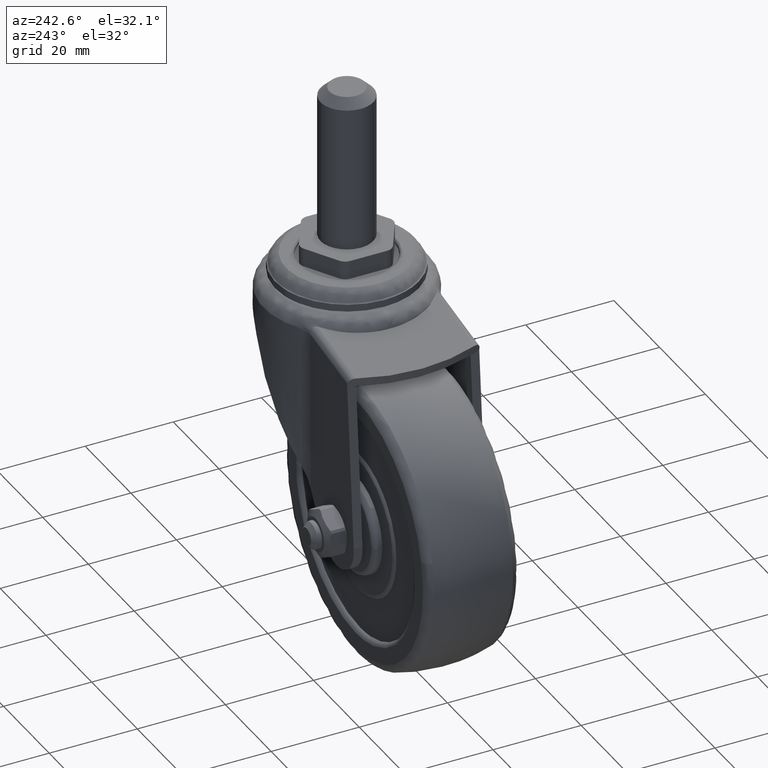
[diagram: clean part render]
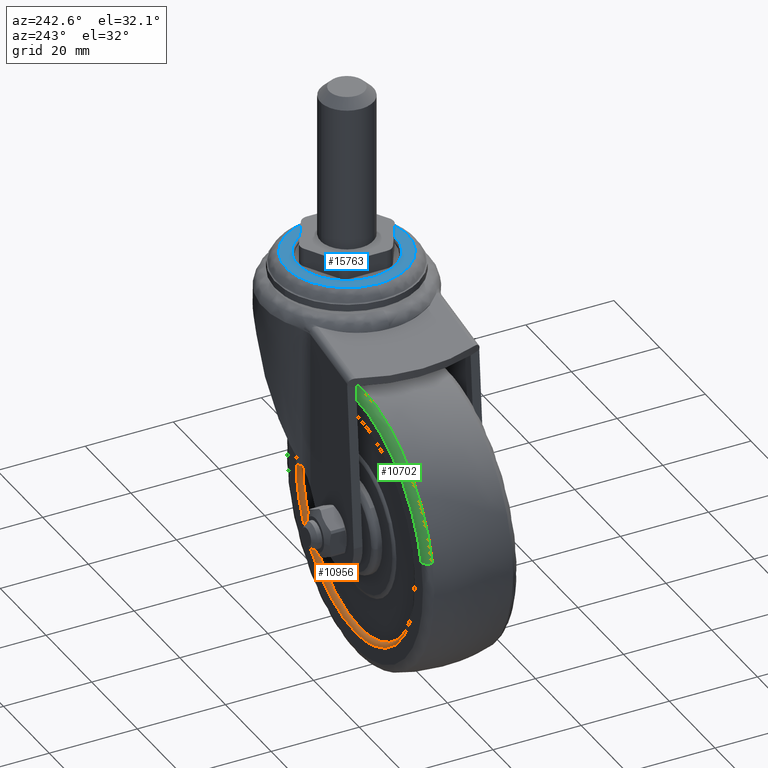
[diagram: same view with three faces highlighted in distinct colors, each labeled with its STEP entity id]
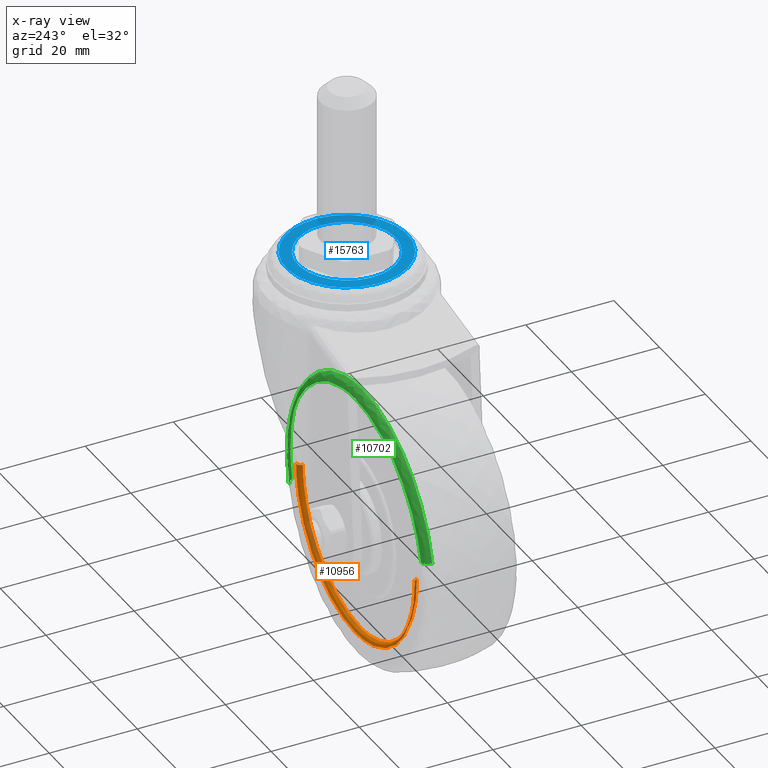
[diagram: x-ray of the same camera — body ghosted, the three highlighted faces saturated]
A machine part, auxiliary view with three faces highlighted in distinct colors.
The next image is the same camera in x-ray (body ghosted, the three faces saturated) — at least one of them is partly hidden behind the body in this view.
Their STEP definitions:

[orange] entity #10956 — the highlighted face is a freeform B-spline surface patch.
#10802=CARTESIAN_POINT('',(0.0,10.500000000000000,-26.0));
#10803=VERTEX_POINT('',#10802);
#10804=CARTESIAN_POINT('',(25.997946908454740,10.499999999999940,-0.326717035244491));
#10805=VERTEX_POINT('',#10804);
#10806=CARTESIAN_POINT('',(0.0,10.500000000000000,-26.0));
#10807=CARTESIAN_POINT('',(25.675310055888392,10.499999999999972,-25.999999998486761));
#10808=CARTESIAN_POINT('',(25.997946908454736,10.499999999999940,-0.326717035244491));
#10816=(BOUNDED_CURVE()B_SPLINE_CURVE(2,(#10806,#10807,#10808),.UNSPECIFIED.,.F.,.U.)B_SPLINE_CURVE_WITH_KNOTS((3,3),(0.0,0.247784295912908),.UNSPECIFIED.)CURVE()GEOMETRIC_REPRESENTATION_ITEM()RATIONAL_B_SPLINE_CURVE((1.0,0.709702639994573,0.994854295623712))REPRESENTATION_ITEM(''));
#10817=EDGE_CURVE('',#10803,#10805,#10816,.T.);
#10836=CARTESIAN_POINT('',(-25.997946908454740,10.499999999999940,0.326717035244494));
#10837=VERTEX_POINT('',#10836);
#10851=CARTESIAN_POINT('',(-25.997946908454736,10.499999999999940,0.326717035244494));
#10852=CARTESIAN_POINT('',(-25.999999759919049,10.499999999999938,0.163364965424017));
#10853=CARTESIAN_POINT('',(-25.999999760675649,10.499999999999940,-3.007596E-009));
#10854=CARTESIAN_POINT('',(-25.999999881089696,10.499999999999972,-26.000000001494353));
#10855=CARTESIAN_POINT('',(0.0,10.500000000000000,-26.0));
#10863=(BOUNDED_CURVE()B_SPLINE_CURVE(2,(#10851,#10852,#10853,#10854,#10855),.UNSPECIFIED.,.F.,.U.)B_SPLINE_CURVE_WITH_KNOTS((3,2,3),(0.747784295912908,0.750000000000000,1.0),.UNSPECIFIED.)CURVE()GEOMETRIC_REPRESENTATION_ITEM()RATIONAL_B_SPLINE_CURVE((0.994854295623712,0.997404141191974,1.0,0.707106781186547,1.0))REPRESENTATION_ITEM(''));
#10864=EDGE_CURVE('',#10837,#10803,#10863,.T.);
#10869=CARTESIAN_POINT('',(-25.000446548479886,9.430462890886753,0.314181414873587));
#10870=CARTESIAN_POINT('',(-25.314627963353484,9.430462890886755,-24.686265133606302));
#10871=CARTESIAN_POINT('',(-0.314181414873587,9.430462890886753,-25.000446548479886));
#10872=CARTESIAN_POINT('',(24.686265133606302,9.430462890886755,-25.314627963353484));
#10873=CARTESIAN_POINT('',(25.000446548479886,9.430462890886753,-0.314181414873587));
#10874=CARTESIAN_POINT('',(-24.920495083465923,10.577537174017754,0.313176662244445));
#10875=CARTESIAN_POINT('',(-25.233671745710346,10.577537174017753,-24.607318421221471));
#10876=CARTESIAN_POINT('',(-0.313176662244445,10.577537174017754,-24.920495083465923));
#10877=CARTESIAN_POINT('',(24.607318421221471,10.577537174017753,-25.233671745710371));
#10878=CARTESIAN_POINT('',(24.920495083465923,10.577537174017754,-0.313176662244445));
#10879=CARTESIAN_POINT('',(-26.067478796179365,10.497579363531763,0.327590843407108));
#10880=CARTESIAN_POINT('',(-26.395069639586474,10.497579363531763,-25.739887952772253));
#10881=CARTESIAN_POINT('',(-0.327590843407108,10.497579363531763,-26.067478796179365));
#10882=CARTESIAN_POINT('',(25.739887952772253,10.497579363531763,-26.395069639586474));
#10883=CARTESIAN_POINT('',(26.067478796179365,10.497579363531763,-0.327590843407108));
#10891=(BOUNDED_SURFACE()B_SPLINE_SURFACE(2,2,((#10869,#10874,#10879),(#10870,#10875,#10880),(#10871,#10876,#10881),(#10872,#10877,#10882),(#10873,#10878,#10883)),.UNSPECIFIED.,.F.,.F.,.U.)B_SPLINE_SURFACE_WITH_KNOTS((3,2,3),(3,3),(0.0,43.193423388135820,86.386846776271639),(0.0,1.822373945662545),.UNSPECIFIED.)GEOMETRIC_REPRESENTATION_ITEM()RATIONAL_B_SPLINE_SURFACE(((0.910479795090997,0.597479572841838,0.910479806786608),(0.643806437242182,0.422481857576905,0.643806445512228),(0.910479795090997,0.597479572841838,0.910479806786608),(0.643806437242182,0.422481857576905,0.643806445512228),(0.910479795090997,0.597479572841838,0.910479806786608)))REPRESENTATION_ITEM('')SURFACE());
#10892=ORIENTED_EDGE('',*,*,#10864,.F.);
#10893=CARTESIAN_POINT('',(-24.998026105094521,9.500000000580172,0.314150997154062));
#10894=VERTEX_POINT('',#10893);
#10895=CARTESIAN_POINT('',(-24.998026105094524,9.500000000580172,0.314150997154063));
#10896=CARTESIAN_POINT('',(-24.998026105666881,10.499999759152912,0.314150997778139));
#10897=CARTESIAN_POINT('',(-25.997946908454740,10.499999999999941,0.326717035244494));
#10905=(BOUNDED_CURVE()B_SPLINE_CURVE(2,(#10895,#10896,#10897),.UNSPECIFIED.,.F.,.U.)B_SPLINE_CURVE_WITH_KNOTS((3,3),(-1.725134642686851,-0.274865603705734),.UNSPECIFIED.)CURVE()GEOMETRIC_REPRESENTATION_ITEM()RATIONAL_B_SPLINE_CURVE((0.883342149440779,0.624617268295769,0.883342061528978))REPRESENTATION_ITEM(''));
#10906=EDGE_CURVE('',#10894,#10837,#10905,.T.);
#10907=ORIENTED_EDGE('',*,*,#10906,.F.);
#10908=CARTESIAN_POINT('',(0.0,9.500000000000000,-25.0));
#10909=VERTEX_POINT('',#10908);
#10910=CARTESIAN_POINT('',(-24.998026105094514,9.500000000580172,0.314150997154063));
#10911=CARTESIAN_POINT('',(-25.0,9.500000000578373,0.157081699832371));
#10912=CARTESIAN_POINT('',(-25.0,9.500000000576549,-1.328094E-015));
#10913=CARTESIAN_POINT('',(-25.000000000000004,9.500000000286462,-25.000000000000004));
#10914=CARTESIAN_POINT('',(0.0,9.500000000000000,-25.0));
#10922=(BOUNDED_CURVE()B_SPLINE_CURVE(2,(#10910,#10911,#10912,#10913,#10914),.UNSPECIFIED.,.F.,.U.)B_SPLINE_CURVE_WITH_KNOTS((3,2,3),(0.747784295921234,0.750000000000000,1.0),.UNSPECIFIED.)CURVE()GEOMETRIC_REPRESENTATION_ITEM()RATIONAL_B_SPLINE_CURVE((0.994854295642875,0.997404141201728,1.0,0.707106781186547,1.0))REPRESENTATION_ITEM(''));
#10923=EDGE_CURVE('',#10894,#10909,#10922,.T.);
#10924=ORIENTED_EDGE('',*,*,#10923,.T.);
#10925=CARTESIAN_POINT('',(24.998026105094521,9.500000000580172,-0.314150997154053));
#10926=VERTEX_POINT('',#10925);
#10927=CARTESIAN_POINT('',(0.0,9.500000000000000,-25.0));
#10928=CARTESIAN_POINT('',(24.687798247613475,9.500000000290088,-25.0));
#10929=CARTESIAN_POINT('',(24.998026105094521,9.500000000580172,-0.314150997154053));
#10937=(BOUNDED_CURVE()B_SPLINE_CURVE(2,(#10927,#10928,#10929),.UNSPECIFIED.,.F.,.U.)B_SPLINE_CURVE_WITH_KNOTS((3,3),(0.0,0.247784295921234),.UNSPECIFIED.)CURVE()GEOMETRIC_REPRESENTATION_ITEM()RATIONAL_B_SPLINE_CURVE((1.0,0.709702639984819,0.994854295642875))REPRESENTATION_ITEM(''));
#10938=EDGE_CURVE('',#10909,#10926,#10937,.T.);
#10939=ORIENTED_EDGE('',*,*,#10938,.T.);
#10940=CARTESIAN_POINT('',(24.998026105094524,9.500000000580172,-0.314150997154053));
#10941=CARTESIAN_POINT('',(24.998026105666906,10.499999759152910,-0.314150997778133));
#10942=CARTESIAN_POINT('',(25.997946908454733,10.499999999999941,-0.326717035244491));
#10950=(BOUNDED_CURVE()B_SPLINE_CURVE(2,(#10940,#10941,#10942),.UNSPECIFIED.,.F.,.U.)B_SPLINE_CURVE_WITH_KNOTS((3,3),(-1.725134642686851,-0.274865603705735),.UNSPECIFIED.)CURVE()GEOMETRIC_REPRESENTATION_ITEM()RATIONAL_B_SPLINE_CURVE((0.883342149440779,0.624617268295769,0.883342061528978))REPRESENTATION_ITEM(''));
#10951=EDGE_CURVE('',#10926,#10805,#10950,.T.);
#10952=ORIENTED_EDGE('',*,*,#10951,.T.);
#10953=ORIENTED_EDGE('',*,*,#10817,.F.);
#10954=EDGE_LOOP('',(#10892,#10907,#10924,#10939,#10952,#10953));
#10955=FACE_OUTER_BOUND('',#10954,.T.);
#10956=ADVANCED_FACE('',(#10955),#10891,.T.);

[blue] entity #15763 — the highlighted face is a freeform B-spline surface patch.
#13410=CARTESIAN_POINT('',(35.100000000000001,1.421085E-014,48.299999000000099));
#13411=VERTEX_POINT('',#13410);
#13412=CARTESIAN_POINT('',(35.096494500704118,-0.278944059484951,48.299999000000099));
#13413=VERTEX_POINT('',#13412);
#13414=CARTESIAN_POINT('',(35.100000000000001,1.421085E-014,48.299999000000099));
#13415=CARTESIAN_POINT('',(35.099999999830658,-0.139494056601476,48.299999000000085));
#13416=CARTESIAN_POINT('',(35.096494500704118,-0.278944059484951,48.299999000000099));
#13424=(BOUNDED_CURVE()B_SPLINE_CURVE(2,(#13414,#13415,#13416),.UNSPECIFIED.,.F.,.U.)B_SPLINE_CURVE_WITH_KNOTS((3,3),(0.0,0.004420108231335),.UNSPECIFIED.)CURVE()GEOMETRIC_REPRESENTATION_ITEM()RATIONAL_B_SPLINE_CURVE((1.0,0.994821521090482,0.989826157678995))REPRESENTATION_ITEM(''));
#13425=EDGE_CURVE('',#13411,#13413,#13424,.T.);
#13427=CARTESIAN_POINT('',(12.903505499295880,0.278944059484978,48.299999000000099));
#13428=VERTEX_POINT('',#13427);
#13429=CARTESIAN_POINT('',(12.903505499295880,0.278944059484978,48.299999000000099));
#13430=CARTESIAN_POINT('',(12.925912242191970,1.179531472061810,48.299999000000057));
#13431=CARTESIAN_POINT('',(13.138810624165840,2.615858692309269,48.299999000000007));
#13432=CARTESIAN_POINT('',(13.865089789097270,4.658420631091869,48.299999000000312));
#13433=CARTESIAN_POINT('',(14.729930687516161,6.197023483776738,48.299998999999673));
#13434=CARTESIAN_POINT('',(15.832136783941840,7.569948080305323,48.299999000001037));
#13435=CARTESIAN_POINT('',(16.852359384138460,8.528746837156131,48.299998999999382));
#13436=CARTESIAN_POINT('',(18.052532308749200,9.408670470962589,48.299999000000177));
#13437=CARTESIAN_POINT('',(19.436677172111889,10.173567930686101,48.299999000000369));
#13438=CARTESIAN_POINT('',(20.970714504247479,10.716974639215399,48.299998999999723));
#13439=CARTESIAN_POINT('',(22.606361373118851,11.049352124438441,48.299999000000660));
#13440=CARTESIAN_POINT('',(24.095413857382521,11.139514241166770,48.299998999998841));
#13441=CARTESIAN_POINT('',(25.713990996654029,11.000581685661571,48.299999000000469));
#13442=CARTESIAN_POINT('',(27.300842646557498,10.646588665745099,48.299998999999872));
#13443=CARTESIAN_POINT('',(28.897559810158519,10.012941929661110,48.299999000000518));
#13444=CARTESIAN_POINT('',(30.334206950973279,9.159479256822671,48.299998999999389));
#13445=CARTESIAN_POINT('',(31.566716614549922,8.170823169981404,48.299999000000092));
#13446=CARTESIAN_POINT('',(32.866441737432403,6.789207841093836,48.299999000000163));
#13447=CARTESIAN_POINT('',(33.960759561163513,5.066999011639638,48.299999000000213));
#13448=CARTESIAN_POINT('',(34.864897295962678,2.702330918268415,48.299998999999289));
#13449=CARTESIAN_POINT('',(35.100366871258089,1.036023089119824,48.299999000001542));
#13450=CARTESIAN_POINT('',(35.100000000000001,1.421085E-014,48.299999000000099));
#13451=B_SPLINE_CURVE_WITH_KNOTS('',3,(#13429,#13430,#13431,#13432,#13433,#13434,#13435,#13436,#13437,#13438,#13439,#13440,#13441,#13442,#13443,#13444,#13445,#13446,#13447,#13448,#13449,#13450),.UNSPECIFIED.,.F.,.U.,(4,1,1,1,1,1,1,1,1,1,1,1,1,1,1,1,1,1,1,4),(0.000000099898379,2.702529220478255,4.324112396266127,6.486156774907769,7.972589232491590,9.594142656629792,10.675164787973760,12.431857235962219,14.323639565401290,15.539834265676779,17.431577190719739,18.782822439962370,20.404410596058131,22.296176321133490,23.917743245791051,25.404175631123920,27.025729109484690,29.593164688431461,31.484983653009468,34.592918622744847),.UNSPECIFIED.);
#13452=EDGE_CURVE('',#13428,#13411,#13451,.T.);
#13509=CARTESIAN_POINT('',(12.900000000000000,1.421085E-014,48.299999000000099));
#13510=VERTEX_POINT('',#13509);
#13511=CARTESIAN_POINT('',(35.096494500704118,-0.278944059484951,48.299999000000099));
#13512=CARTESIAN_POINT('',(35.071921228990632,-1.269619942581748,48.299999000000078));
#13513=CARTESIAN_POINT('',(34.855548422381098,-2.615698409823947,48.299999000000120));
#13514=CARTESIAN_POINT('',(34.220830848433479,-4.400232607390553,48.299999000000113));
#13515=CARTESIAN_POINT('',(33.474054441600643,-5.895122512961702,48.299999000000113));
#13516=CARTESIAN_POINT('',(32.365373247896997,-7.384402335800156,48.299999000000028));
#13517=CARTESIAN_POINT('',(30.785701142025619,-8.869097718273354,48.299999000000177));
#13518=CARTESIAN_POINT('',(29.063085754025160,-9.962737963066017,48.299999000000383));
#13519=CARTESIAN_POINT('',(26.866999832204620,-10.801460015067651,48.299998999999623));
#13520=CARTESIAN_POINT('',(24.853905485734611,-11.134560155837139,48.299999000001158));
#13521=CARTESIAN_POINT('',(23.093100813138442,-11.090762049549239,48.299998999999993));
#13522=CARTESIAN_POINT('',(21.665510822694880,-10.880180625985700,48.299999000000120));
#13523=CARTESIAN_POINT('',(20.184871161531639,-10.473286052160301,48.299999000000113));
#13524=CARTESIAN_POINT('',(18.332671644843192,-9.631903685688290,48.299999000000177));
#13525=CARTESIAN_POINT('',(16.680705503294249,-8.434142765483243,48.299998999999723));
#13526=CARTESIAN_POINT('',(15.443132650283680,-7.118072128804921,48.299999000000277));
#13527=CARTESIAN_POINT('',(14.516808870752341,-5.839490720343710,48.299998999999922));
#13528=CARTESIAN_POINT('',(13.818775299253980,-4.521078250745616,48.299999000000341));
#13529=CARTESIAN_POINT('',(13.109683303091071,-2.522174576146547,48.299998999999808));
#13530=CARTESIAN_POINT('',(12.899553949487490,-1.036033655855108,48.299999000001343));
#13531=CARTESIAN_POINT('',(12.900000000000000,1.421085E-014,48.299999000000099));
#13532=B_SPLINE_CURVE_WITH_KNOTS('',3,(#13511,#13512,#13513,#13514,#13515,#13516,#13517,#13518,#13519,#13520,#13521,#13522,#13523,#13524,#13525,#13526,#13527,#13528,#13529,#13530,#13531),.UNSPECIFIED.,.F.,.U.,(4,1,1,1,1,1,1,1,1,1,1,1,1,1,1,1,1,1,4),(0.000000099896234,2.972827548896998,4.053826658344089,5.675393192342234,7.972589232491590,9.594142656630115,12.161578235502450,14.053399842677910,16.620849446106568,18.242340543114459,19.323318128601802,20.944876718781678,22.836715860755550,25.404175631125650,27.025729109486360,28.241888932124422,30.133718108582340,31.484983653010062,34.592918622745209),.UNSPECIFIED.);
#13533=EDGE_CURVE('',#13413,#13510,#13532,.T.);
#13540=CARTESIAN_POINT('',(12.900000000000000,1.421085E-014,48.299999000000099));
#13541=CARTESIAN_POINT('',(12.900000000169346,0.139494056601504,48.299999000000085));
#13542=CARTESIAN_POINT('',(12.903505499295884,0.278944059484978,48.299999000000099));
#13550=(BOUNDED_CURVE()B_SPLINE_CURVE(2,(#13540,#13541,#13542),.UNSPECIFIED.,.F.,.U.)B_SPLINE_CURVE_WITH_KNOTS((3,3),(0.500000000000000,0.504420108231335),.UNSPECIFIED.)CURVE()GEOMETRIC_REPRESENTATION_ITEM()RATIONAL_B_SPLINE_CURVE((1.0,0.994821521090482,0.989826157678995))REPRESENTATION_ITEM(''));
#13551=EDGE_CURVE('',#13510,#13428,#13550,.T.);
#15515=CARTESIAN_POINT('',(8.821382217823674,-15.177419894947271,48.299999000000099));
#15516=CARTESIAN_POINT('',(39.178618488682901,-15.177419894947271,48.299999000000099));
#15517=CARTESIAN_POINT('',(8.821382217823674,15.177420635071529,48.299999000000099));
#15518=CARTESIAN_POINT('',(39.178618488682901,15.177420635071529,48.299999000000099));
#15519=B_SPLINE_SURFACE_WITH_KNOTS('',1,1,((#15515,#15517),(#15516,#15518)),.UNSPECIFIED.,.F.,.F.,.U.,(2,2),(2,2),(0.0,30.357236270859229),(0.0,30.354840530018802),.UNSPECIFIED.);
#15520=CARTESIAN_POINT('',(37.795639830858420,-0.346795267570719,48.299999048903473));
#15521=VERTEX_POINT('',#15520);
#15522=CARTESIAN_POINT('',(10.200001966216989,0.0,48.299999098654702));
#15523=VERTEX_POINT('',#15522);
#15524=CARTESIAN_POINT('',(37.795639830858420,-0.346795267570719,48.299999048903473));
#15525=CARTESIAN_POINT('',(37.780169533770547,-0.962566302306216,48.299999048917343));
#15526=CARTESIAN_POINT('',(37.640880944143447,-2.471516085062181,48.299999049134342));
#15527=CARTESIAN_POINT('',(37.127192289590660,-4.430798917720012,48.299999050015913));
#15528=CARTESIAN_POINT('',(36.324872789466014,-6.283560543082318,48.299999051420080));
#15529=CARTESIAN_POINT('',(35.388064734594330,-7.881287969801415,48.299999053072717));
#15530=CARTESIAN_POINT('',(33.981493496553163,-9.633597442138576,48.299999055568357));
#15531=CARTESIAN_POINT('',(32.243904568280293,-11.150965831077800,48.299999058666252));
#15532=CARTESIAN_POINT('',(30.374037154979451,-12.290654144931260,48.299999062010919));
#15533=CARTESIAN_POINT('',(29.137299657218701,-12.824413099937299,48.299999064228210));
#15534=CARTESIAN_POINT('',(28.476088963582690,-13.054247638762471,48.299999065414859));
#15535=CARTESIAN_POINT('',(28.369781706385400,-13.089495858592270,48.299999065605682));
#15536=CARTESIAN_POINT('',(28.263716685723001,-13.125430884254451,48.299999065796072));
#15537=CARTESIAN_POINT('',(28.156804276320852,-13.158762600432251,48.299999065988018));
#15538=CARTESIAN_POINT('',(28.023312978288288,-13.200906333511661,48.299999066227677));
#15539=CARTESIAN_POINT('',(27.889126205351900,-13.240864655885320,48.299999066468672));
#15540=CARTESIAN_POINT('',(27.754651502143009,-13.279844784901700,48.299999066710171));
#15541=CARTESIAN_POINT('',(27.646536773726211,-13.309109680722271,48.299999066904427));
#15542=CARTESIAN_POINT('',(27.565638076610419,-13.331746845762691,48.299999067049733));
#15543=CARTESIAN_POINT('',(27.484227506529368,-13.352465806802210,48.299999067196033));
#15544=CARTESIAN_POINT('',(27.403074401397038,-13.374170547896350,48.299999067341808));
#15545=CARTESIAN_POINT('',(27.321417229238332,-13.393893094662380,48.299999067488557));
#15546=CARTESIAN_POINT('',(27.240006228391941,-13.414605260879879,48.299999067634822));
#15547=CARTESIAN_POINT('',(27.158119201277479,-13.433348797079850,48.299999067781997));
#15548=CARTESIAN_POINT('',(27.103677427584859,-13.446473067696431,48.299999067879867));
#15549=CARTESIAN_POINT('',(26.694279763295011,-13.540108701900291,48.299999068615620));
#15550=CARTESIAN_POINT('',(26.308437065541600,-13.611204295540690,48.299999069309692));
#15551=CARTESIAN_POINT('',(25.892545735436531,-13.669627431315840,48.299999070057943));
#15552=CARTESIAN_POINT('',(25.836995387701720,-13.676769429539171,48.299999070157931));
#15553=CARTESIAN_POINT('',(25.753796907420789,-13.688443040038999,48.299999070307642));
#15554=CARTESIAN_POINT('',(25.670342704043598,-13.698107100397699,48.299999070457872));
#15555=CARTESIAN_POINT('',(25.587013493554700,-13.708780543548100,48.299999070607797));
#15556=CARTESIAN_POINT('',(25.503453059483451,-13.717455328661501,48.299999070758261));
#15557=CARTESIAN_POINT('',(25.420004456168940,-13.726956334015799,48.299999070908449));
#15558=CARTESIAN_POINT('',(25.308560995849579,-13.737932965257320,48.299999071109092));
#15559=CARTESIAN_POINT('',(25.197060073699369,-13.748361105864500,48.299999071309841));
#15560=CARTESIAN_POINT('',(25.085379390747011,-13.756886443504021,48.299999071510953));
#15561=CARTESIAN_POINT('',(25.001660853107410,-13.763936659656791,48.299999071661709));
#15562=CARTESIAN_POINT('',(24.917801264145471,-13.769016794345580,48.299999071812763));
#15563=CARTESIAN_POINT('',(24.834012400727271,-13.775111583481040,48.299999071963661));
#15564=CARTESIAN_POINT('',(24.750102000210610,-13.779170886959600,48.299999072114822));
#15565=CARTESIAN_POINT('',(24.638313972785081,-13.785882502928780,48.299999072316190));
#15566=CARTESIAN_POINT('',(24.526380920861349,-13.789571431887779,48.299999072517863));
#15567=CARTESIAN_POINT('',(24.414480610140181,-13.794084225357050,48.299999072719487));
#15568=CARTESIAN_POINT('',(24.330481495892691,-13.795789436489260,48.299999072870847));
#15569=CARTESIAN_POINT('',(24.106585314221402,-13.800900646280409,48.299999073274343));
#15570=CARTESIAN_POINT('',(23.854574969570940,-13.800657146061750,48.299999073728593));
#15571=CARTESIAN_POINT('',(23.602685206058489,-13.794613488087039,48.299999074182779));
#15572=CARTESIAN_POINT('',(23.490754464978401,-13.790299369010731,48.299999074384651));
#15573=CARTESIAN_POINT('',(23.378809312782138,-13.786377109677741,48.299999074586552));
#15574=CARTESIAN_POINT('',(23.266970319864729,-13.780633147614200,48.299999074788253));
#15575=CARTESIAN_POINT('',(23.155166453261860,-13.774324110568431,48.299999074989948));
#15576=CARTESIAN_POINT('',(23.071405227813411,-13.768320982473790,48.299999075141059));
#15577=CARTESIAN_POINT('',(22.987558725634241,-13.763147812190081,48.299999075292320));
#15578=CARTESIAN_POINT('',(22.903859982696350,-13.755968201372781,48.299999075443360));
#15579=CARTESIAN_POINT('',(22.820078810960439,-13.749805082408530,48.299999075594492));
#15580=CARTESIAN_POINT('',(22.736471922316088,-13.741603997895080,48.299999075745419));
#15581=CARTESIAN_POINT('',(22.652770882556570,-13.734418425612240,48.299999075896437));
#15582=CARTESIAN_POINT('',(22.569253157484109,-13.725342418118849,48.299999076047193));
#15583=CARTESIAN_POINT('',(22.402151456776370,-13.707905655452540,48.299999076348847));
#15584=CARTESIAN_POINT('',(22.235424788215148,-13.687265671668021,48.299999076649797));
#15585=CARTESIAN_POINT('',(22.069003307916660,-13.664414845745670,48.299999076950321));
#15586=CARTESIAN_POINT('',(21.985964528328829,-13.651886603050800,48.299999077100310));
#15587=CARTESIAN_POINT('',(21.875128900644139,-13.635772067459730,48.299999077300441));
#15588=CARTESIAN_POINT('',(21.515710515119711,-13.578091794622960,48.299999077949643));
#15589=CARTESIAN_POINT('',(21.130967084384949,-13.502042963703181,48.299999078644873));
#15590=CARTESIAN_POINT('',(20.776637051212560,-13.418616719709890,48.299999079285449));
#15591=CARTESIAN_POINT('',(20.667972404395378,-13.391476871899290,48.299999079481999));
#15592=CARTESIAN_POINT('',(20.450673910523289,-13.337094526513280,48.299999079874851));
#15593=CARTESIAN_POINT('',(20.234690934692491,-13.277630370837720,48.299999080265628));
#15594=CARTESIAN_POINT('',(20.020005195164149,-13.213779151576460,48.299999080654011));
#15595=CARTESIAN_POINT('',(19.939812634890881,-13.188841328400310,48.299999080799147));
#15596=CARTESIAN_POINT('',(19.832719880396599,-13.156064279198050,48.299999080993203));
#15597=CARTESIAN_POINT('',(18.899639878784079,-12.856378692656770,48.299999082679392));
#15598=CARTESIAN_POINT('',(17.560604120060571,-12.267304193096971,48.299999085113782));
#15599=CARTESIAN_POINT('',(15.714978434440660,-11.093512578045930,48.299999088457497));
#15600=CARTESIAN_POINT('',(13.962071612055221,-9.597758958297613,48.299999091658229));
#15601=CARTESIAN_POINT('',(12.493556751231440,-7.742526821906409,48.299999094344230));
#15602=CARTESIAN_POINT('',(11.500136807663431,-5.919819342680761,48.299999096177103));
#15603=CARTESIAN_POINT('',(10.776189487832520,-4.125501334404367,48.299999097522601));
#15604=CARTESIAN_POINT('',(10.456021308951760,-2.785141277077759,48.299999098130087));
#15605=CARTESIAN_POINT('',(10.331131710033571,-1.897907519140162,48.299999098375373));
#15606=CARTESIAN_POINT('',(10.323952668077260,-1.842363862077433,48.299999098389527));
#15607=CARTESIAN_POINT('',(10.312246502260029,-1.759170661114385,48.299999098412513));
#15608=CARTESIAN_POINT('',(10.302549744737840,-1.675720880392102,48.299999098431890));
#15609=CARTESIAN_POINT('',(10.291843648320350,-1.592396335456676,48.299999098453092));
#15610=CARTESIAN_POINT('',(10.283136088974061,-1.508839704705604,48.299999098470657));
#15611=CARTESIAN_POINT('',(10.273602348938221,-1.425395124748882,48.299999098489742));
#15612=CARTESIAN_POINT('',(10.262582026152700,-1.313956745205723,48.299999098512110));
#15613=CARTESIAN_POINT('',(10.252110157256670,-1.202460634898834,48.299999098533547));
#15614=CARTESIAN_POINT('',(10.243540997446260,-1.090783987235785,48.299999098551503));
#15615=CARTESIAN_POINT('',(10.236457894748570,-1.007068264458022,48.299999098566161));
#15616=CARTESIAN_POINT('',(10.231344811529871,-0.923210607712142,48.299999098577267));
#15617=CARTESIAN_POINT('',(10.225217082175369,-0.839423849120159,48.299999098590241));
#15618=CARTESIAN_POINT('',(10.220929699532711,-0.755524047827280,48.299999098599862));
#15619=CARTESIAN_POINT('',(10.206072447009699,-0.475949780960373,48.299999098632981));
#15620=CARTESIAN_POINT('',(10.200008339542331,-0.223966970450588,48.299999098649607));
#15621=CARTESIAN_POINT('',(10.200001966216989,0.0,48.299999098654702));
#15622=B_SPLINE_CURVE_WITH_KNOTS('',3,(#15524,#15525,#15526,#15527,#15528,#15529,#15530,#15531,#15532,#15533,#15534,#15535,#15536,#15537,#15538,#15539,#15540,#15541,#15542,#15543,#15544,#15545,#15546,#15547,#15548,#15549,#15550,#15551,#15552,#15553,#15554,#15555,#15556,#15557,#15558,#15559,#15560,#15561,#15562,#15563,#15564,#15565,#15566,#15567,#15568,#15569,#15570,#15571,#15572,#15573,#15574,#15575,#15576,#15577,#15578,#15579,#15580,#15581,#15582,#15583,#15584,#15585,#15586,#15587,#15588,#15589,#15590,#15591,#15592,#15593,#15594,#15595,#15596,#15597,#15598,#15599,#15600,#15601,#15602,#15603,#15604,#15605,#15606,#15607,#15608,#15609,#15610,#15611,#15612,#15613,#15614,#15615,#15616,#15617,#15618,#15619,#15620,#15621),.UNSPECIFIED.,.F.,.U.,(4,1,1,1,1,1,1,1,1,1,1,1,1,1,1,1,1,1,1,1,1,1,1,2,2,1,1,1,1,1,1,1,1,1,1,1,1,1,1,1,1,1,1,1,1,1,1,1,1,1,1,1,1,1,1,1,1,1,1,1,1,1,1,1,1,1,1,1,1,1,1,1,1,1,1,1,1,2,1,1,1,1,1,1,1,1,1,1,1,1,1,1,4),(0.000358605813375,1.848267295068752,4.536211626470504,6.048189684916181,7.896165813751239,10.080130514727150,12.768071005620399,14.784035424439461,16.632032422723270,16.800031450864001,16.884030589591600,16.968029728319220,17.135976341820019,17.219978988853189,17.387986141866079,17.555992806463880,17.639995733875701,17.723998661287560,17.808001001369000,17.892003341450469,17.976004888521679,18.060006435592921,18.144006959232190,18.228007482871430,19.403928334075129,19.487938715926909,19.571949097778681,19.655956902871509,19.739964707964351,19.823969405354841,19.907974102745349,19.991926103905062,20.159913919422259,20.243926854567899,20.327939789713550,20.411948463147109,20.495957136580792,20.579960818154269,20.663964499727740,20.831906839102899,20.915923617403131,20.999934480199130,21.083945342995161,21.587799158037189,21.755814419959108,21.839825030567031,21.923835641174911,22.091852102668639,22.175775588115279,22.259777031702100,22.343778475288872,22.427782075246981,22.511785675205111,22.595790982281731,22.679796289358340,22.763802897697889,22.847809506037422,23.183824680234750,23.267756974064579,23.351757054644398,23.435757135224229,23.603758919680711,24.443777943536521,24.611781658316261,24.695783256665361,24.779784855014491,25.283782133689890,25.367723485589991,25.451722288495048,25.535721091400148,25.703718732225528,28.391681213178568,29.903661397537061,32.255630068388243,35.279576611993292,36.959554502115253,38.471542037134043,41.075442169264093,41.159451780655580,41.243461392047053,41.327468644090473,41.411475896133901,41.495480281740448,41.579484667347003,41.663436428185030,41.831422500780057,41.915435288319948,41.999448075859817,42.083456928296293,42.167465780732734,42.251469995061349,42.335474209389950,43.007384841854389),.UNSPECIFIED.);
#15623=EDGE_CURVE('',#15521,#15523,#15622,.T.);
#15624=ORIENTED_EDGE('',*,*,#15623,.F.);
#15625=CARTESIAN_POINT('',(37.799998000000002,0.0,48.299999000000099));
#15626=VERTEX_POINT('',#15625);
#15627=CARTESIAN_POINT('',(37.799998000000002,0.0,48.299999000000099));
#15628=CARTESIAN_POINT('',(37.799998009061859,-0.173425018525061,48.299999024451779));
#15629=CARTESIAN_POINT('',(37.795639830858420,-0.346795267570719,48.299999048903480));
#15637=(BOUNDED_CURVE()B_SPLINE_CURVE(2,(#15627,#15628,#15629),.UNSPECIFIED.,.F.,.U.)B_SPLINE_CURVE_WITH_KNOTS((3,3),(0.500000000000000,0.504420108233455),.UNSPECIFIED.)CURVE()GEOMETRIC_REPRESENTATION_ITEM()RATIONAL_B_SPLINE_CURVE((1.0,0.994821521087998,0.989826157674201))REPRESENTATION_ITEM(''));
#15638=EDGE_CURVE('',#15626,#15521,#15637,.T.);
#15639=ORIENTED_EDGE('',*,*,#15638,.F.);
#15640=CARTESIAN_POINT('',(10.204360152689620,0.346795267984284,48.299999096992771));
#15641=VERTEX_POINT('',#15640);
#15642=CARTESIAN_POINT('',(10.204360152689620,0.346795267984284,48.299999096992771));
#15643=CARTESIAN_POINT('',(10.232221506434190,1.466426237479654,48.299999088988201));
#15644=CARTESIAN_POINT('',(10.529907048447781,3.475400296423289,48.299999074618512));
#15645=CARTESIAN_POINT('',(11.617145208934900,6.312531904914717,48.299999054304593));
#15646=CARTESIAN_POINT('',(13.083138146271169,8.584800753678458,48.299999038018058));
#15647=CARTESIAN_POINT('',(14.878717303575259,10.444878146273560,48.299999024668217));
#15648=CARTESIAN_POINT('',(16.918417795293468,11.940271367539570,48.299999013917500));
#15649=CARTESIAN_POINT('',(18.545240383355338,12.714285901811159,48.299999008336840));
#15650=CARTESIAN_POINT('',(19.523920756986140,13.054226244524081,48.299999005877638));
#15651=CARTESIAN_POINT('',(19.630218161894302,13.089496070368339,48.299999005622311));
#15652=CARTESIAN_POINT('',(19.736283330739521,13.125430825658521,48.299999005362288));
#15653=CARTESIAN_POINT('',(19.843195701413659,13.158762612398350,48.299999005120839));
#15654=CARTESIAN_POINT('',(19.976687009308389,13.200906327390181,48.299999004815632));
#15655=CARTESIAN_POINT('',(20.110873780790019,13.240864652324831,48.299999004526022));
#15656=CARTESIAN_POINT('',(20.245348483882310,13.279844781475679,48.299999004243368));
#15657=CARTESIAN_POINT('',(20.353463212208201,13.309109677403960,48.299999004030987));
#15658=CARTESIAN_POINT('',(20.434361909255049,13.331746842525190,48.299999003866773));
#15659=CARTESIAN_POINT('',(20.515772479269469,13.352465803645410,48.299999003716252));
#15660=CARTESIAN_POINT('',(20.596925584334159,13.374170544820410,48.299999003558689));
#15661=CARTESIAN_POINT('',(20.678582756427438,13.393893091666900,48.299999003415280));
#15662=CARTESIAN_POINT('',(20.759993757207550,13.414605257965169,48.299999003264801));
#15663=CARTESIAN_POINT('',(20.841880784258159,13.433348794245310,48.299999003128370));
#15664=CARTESIAN_POINT('',(20.896322992621581,13.446473129904041,48.299999003032958));
#15665=CARTESIAN_POINT('',(21.305715980510801,13.540108152763921,48.299999002351512));
#15666=CARTESIAN_POINT('',(21.691567406570559,13.611204933131720,48.299999001831800));
#15667=CARTESIAN_POINT('',(22.107453715788498,13.669627358481980,48.299999001401872));
#15668=CARTESIAN_POINT('',(22.163004596848690,13.676769427938851,48.299999001349157));
#15669=CARTESIAN_POINT('',(22.246203077075119,13.688443038512929,48.299999001263259));
#15670=CARTESIAN_POINT('',(22.329657280400149,13.698107098942931,48.299999001191729));
#15671=CARTESIAN_POINT('',(22.412986490835991,13.708780542166190,48.299999001112923));
#15672=CARTESIAN_POINT('',(22.496546924856140,13.717455327349290,48.299999001048427));
#15673=CARTESIAN_POINT('',(22.579995528125110,13.726956332775300,48.299999000978062));
#15674=CARTESIAN_POINT('',(22.691438988370660,13.737932964107950,48.299999000896300));
#15675=CARTESIAN_POINT('',(22.802939910447950,13.748361104805509,48.299999000818460));
#15676=CARTESIAN_POINT('',(22.914620593322930,13.756886442531520,48.299999000754198));
#15677=CARTESIAN_POINT('',(22.998339130913710,13.763936658751280,48.299999000701348));
#15678=CARTESIAN_POINT('',(23.082198719828490,13.769016793503090,48.299999000662517));
#15679=CARTESIAN_POINT('',(23.165987583198710,13.775111582703680,48.299999000616481));
#15680=CARTESIAN_POINT('',(23.249897983669399,13.779170886243090,48.299999000584990));
#15681=CARTESIAN_POINT('',(23.361686011025920,13.785882502295840,48.299999000533681));
#15682=CARTESIAN_POINT('',(23.473619062883589,13.789571431331879,48.299999000503988));
#15683=CARTESIAN_POINT('',(23.585519373537839,13.794084224880191,48.299999000468418));
#15684=CARTESIAN_POINT('',(23.669518550091659,13.795789520780540,48.299999000454427));
#15685=CARTESIAN_POINT('',(23.893414596567819,13.800905054934431,48.299999000406672));
#15686=CARTESIAN_POINT('',(24.145424566702861,13.800636510287070,48.299999000415141));
#15687=CARTESIAN_POINT('',(24.397316328424669,13.794640505580579,48.299999000401137));
#15688=CARTESIAN_POINT('',(24.509244581782060,13.790285851544130,48.299999000398763));
#15689=CARTESIAN_POINT('',(24.621190513123668,13.786370515448310,48.299999000395502));
#15690=CARTESIAN_POINT('',(24.733029690955711,13.780634311687511,48.299999000392170));
#15691=CARTESIAN_POINT('',(24.844833529755309,13.774324110807500,48.299999000388837));
#15692=CARTESIAN_POINT('',(24.928594755153568,13.768320982749110,48.299999000386357));
#15693=CARTESIAN_POINT('',(25.012441257288639,13.763147812503300,48.299999000383899));
#15694=CARTESIAN_POINT('',(25.096140000181968,13.755968201718909,48.299999000381412));
#15695=CARTESIAN_POINT('',(25.179921171873762,13.749805082790081,48.299999000378918));
#15696=CARTESIAN_POINT('',(25.263528060474350,13.741603998306919,48.299999000376452));
#15697=CARTESIAN_POINT('',(25.347229100189729,13.734418426056941,48.299999000373973));
#15698=CARTESIAN_POINT('',(25.430733769733301,13.725216793711940,48.299999000371493));
#15699=CARTESIAN_POINT('',(25.486469003793840,13.719725228401780,48.299999000369823));
#15700=CARTESIAN_POINT('',(25.653436337808088,13.701279337733240,48.299999000364913));
#15701=CARTESIAN_POINT('',(25.820143079267890,13.680433193096579,48.299999000359911));
#15702=CARTESIAN_POINT('',(26.014052439180869,13.652003248528571,48.299999000354198));
#15703=CARTESIAN_POINT('',(26.124870972208100,13.635771564621949,48.299999000350887));
#15704=CARTESIAN_POINT('',(26.484291057794490,13.578100486742040,48.299999000340172));
#15705=CARTESIAN_POINT('',(26.869030542442509,13.502034410706219,48.299999000328853));
#15706=CARTESIAN_POINT('',(27.223363106100340,13.418617213599781,48.299999000318287));
#15707=CARTESIAN_POINT('',(27.331994870349469,13.391346331337621,48.299999000315047));
#15708=CARTESIAN_POINT('',(27.413556821957609,13.371324327260810,48.299999000312631));
#15709=CARTESIAN_POINT('',(27.630377861808011,13.315146263024451,48.299999000306236));
#15710=CARTESIAN_POINT('',(27.846051524862119,13.254573512373771,48.299999000299771));
#15711=CARTESIAN_POINT('',(28.060223443747368,13.188959370907460,48.299999000293433));
#15712=CARTESIAN_POINT('',(28.167279777135409,13.156063806257061,48.299999000290171));
#15713=CARTESIAN_POINT('',(29.100362384226251,12.856381845420350,48.299999000263142));
#15714=CARTESIAN_POINT('',(30.439396902689850,12.267305389510531,48.299999000221142));
#15715=CARTESIAN_POINT('',(32.048386300443752,11.243972925270890,48.299999000176747));
#15716=CARTESIAN_POINT('',(33.360827618398488,10.191224677136510,48.299999000134392));
#15717=CARTESIAN_POINT('',(34.880611023989047,8.614616057651078,48.299999000090303));
#15718=CARTESIAN_POINT('',(36.092550550232147,6.782039672211123,48.299999000053042));
#15719=CARTESIAN_POINT('',(37.132960296780610,4.451961053240430,48.299999000021529));
#15720=CARTESIAN_POINT('',(37.520675794229362,2.951534191998956,48.299999000009493));
#15721=CARTESIAN_POINT('',(37.668841040459050,1.897899313823277,48.299999000004682));
#15722=CARTESIAN_POINT('',(37.676047298539103,1.842363861101641,48.299999000004462));
#15723=CARTESIAN_POINT('',(37.687753464321013,1.759170660180143,48.299999000004071));
#15724=CARTESIAN_POINT('',(37.697450221813327,1.675720879501550,48.299999000003758));
#15725=CARTESIAN_POINT('',(37.708156318198377,1.592396334607374,48.299999000003432));
#15726=CARTESIAN_POINT('',(37.716863877517618,1.508839703900097,48.299999000003098));
#15727=CARTESIAN_POINT('',(37.726397617524221,1.425395123986123,48.299999000002813));
#15728=CARTESIAN_POINT('',(37.737417940275378,1.313956744501642,48.299999000002458));
#15729=CARTESIAN_POINT('',(37.747889809138819,1.202460634251630,48.299999000002103));
#15730=CARTESIAN_POINT('',(37.756458968921912,1.090783986647578,48.299999000001790));
#15731=CARTESIAN_POINT('',(37.763542071597243,1.007068263913973,48.299999000001549));
#15732=CARTESIAN_POINT('',(37.768655154799148,0.923210607213459,48.299999000001371));
#15733=CARTESIAN_POINT('',(37.774782884134027,0.839423848665556,48.299999000001151));
#15734=CARTESIAN_POINT('',(37.778888689106509,0.755514550203410,48.299999000000973));
#15735=CARTESIAN_POINT('',(37.782269133080142,0.699612872237267,48.299999000000888));
#15736=CARTESIAN_POINT('',(37.794550339551783,0.447944460221697,48.299999000000440));
#15737=CARTESIAN_POINT('',(37.799997303060593,0.223967267226390,48.299999000000192));
#15738=CARTESIAN_POINT('',(37.799998000000002,0.0,48.299999000000099));
#15739=B_SPLINE_CURVE_WITH_KNOTS('',3,(#15642,#15643,#15644,#15645,#15646,#15647,#15648,#15649,#15650,#15651,#15652,#15653,#15654,#15655,#15656,#15657,#15658,#15659,#15660,#15661,#15662,#15663,#15664,#15665,#15666,#15667,#15668,#15669,#15670,#15671,#15672,#15673,#15674,#15675,#15676,#15677,#15678,#15679,#15680,#15681,#15682,#15683,#15684,#15685,#15686,#15687,#15688,#15689,#15690,#15691,#15692,#15693,#15694,#15695,#15696,#15697,#15698,#15699,#15700,#15701,#15702,#15703,#15704,#15705,#15706,#15707,#15708,#15709,#15710,#15711,#15712,#15713,#15714,#15715,#15716,#15717,#15718,#15719,#15720,#15721,#15722,#15723,#15724,#15725,#15726,#15727,#15728,#15729,#15730,#15731,#15732,#15733,#15734,#15735,#15736,#15737,#15738),.UNSPECIFIED.,.F.,.U.,(4,1,1,1,1,1,1,1,1,1,1,1,1,1,1,1,1,1,1,1,1,2,2,1,1,1,1,1,1,1,1,1,1,1,1,1,1,1,1,1,1,1,1,1,1,1,1,1,1,1,1,1,1,1,2,1,1,1,1,1,1,1,1,1,1,1,1,1,1,1,1,1,1,1,2,1,1,1,1,1,1,1,1,1,1,1,1,1,2,4),(0.000358605800699,3.360230705762078,6.048189681616670,9.072147952636485,11.424102901214150,13.776049206828541,16.632032413660468,16.800031441711091,16.884030580393759,16.968029719076409,17.135976332486699,17.219978979458059,17.387986132381371,17.555992796889701,17.639995724256892,17.723998651624100,17.808000991661000,17.892003331697911,17.976004878724641,18.060006425751428,18.144006949346281,18.228007472941190,19.403928323489701,19.487938705297839,19.571949087106059,19.655956892155391,19.739964697204670,19.823969394551700,19.907974091898780,19.991926093033818,20.159913908426059,20.243926843528570,20.327939778631070,20.411948452021608,20.495957125412140,20.579960806942520,20.663964488472949,20.831906827743250,20.915923606000678,20.999934468753871,21.083945331507120,21.587799146274850,21.755814408102061,21.839825018662800,21.923835629223589,22.091852090654140,22.175775576038550,22.259777019578369,22.343778463118220,22.427782063029561,22.511785662940909,22.595790969970949,22.679796277000960,22.763802885294041,22.847809493587139,23.267756961394330,23.351757041927868,23.435757122461361,23.603758906825540,24.443777930222129,24.611781644910401,24.695783243213850,24.779784841517319,24.863729306073001,25.367723471778412,25.451722274637749,25.535721077497062,25.703718718230970,28.391681197721699,29.903661381257258,31.415641625250881,33.431611183937257,36.455559169023040,37.967547897969631,41.075442146904372,41.159451758249872,41.243461369595373,41.327468621592843,41.411475873590291,41.495480259150881,41.579484644711513,41.663436405502267,41.831422478008221,41.915435265502147,41.999448052996101,42.083456905386640,42.167465757777187,42.251469972059930,42.335474186342651,43.007384818441203),.UNSPECIFIED.);
#15740=EDGE_CURVE('',#15641,#15626,#15739,.T.);
#15741=ORIENTED_EDGE('',*,*,#15740,.F.);
#15742=CARTESIAN_POINT('',(10.200001966216989,0.0,48.299999098654702));
#15743=CARTESIAN_POINT('',(10.200001965810316,0.173425018732040,48.299999097823537));
#15744=CARTESIAN_POINT('',(10.204360152689624,0.346795267984284,48.299999096992757));
#15752=(BOUNDED_CURVE()B_SPLINE_CURVE(2,(#15742,#15743,#15744),.UNSPECIFIED.,.F.,.U.)B_SPLINE_CURVE_WITH_KNOTS((3,3),(0.0,0.004420108243949),.UNSPECIFIED.)CURVE()GEOMETRIC_REPRESENTATION_ITEM()RATIONAL_B_SPLINE_CURVE((1.0,0.994821521075703,0.989826157650481))REPRESENTATION_ITEM(''));
#15753=EDGE_CURVE('',#15523,#15641,#15752,.T.);
#15754=ORIENTED_EDGE('',*,*,#15753,.F.);
#15755=EDGE_LOOP('',(#15624,#15639,#15741,#15754));
#15756=FACE_OUTER_BOUND('',#15755,.T.);
#15757=ORIENTED_EDGE('',*,*,#13551,.T.);
#15758=ORIENTED_EDGE('',*,*,#13452,.T.);
#15759=ORIENTED_EDGE('',*,*,#13425,.T.);
#15760=ORIENTED_EDGE('',*,*,#13533,.T.);
#15761=EDGE_LOOP('',(#15757,#15758,#15759,#15760));
#15762=FACE_BOUND('',#15761,.T.);
#15763=ADVANCED_FACE('',(#15756,#15762),#15519,.T.);

[green] entity #10702 — the highlighted face is a freeform B-spline surface patch.
#10583=CARTESIAN_POINT('',(28.665109429157187,10.496229052365695,-6.596786690952829));
#10584=CARTESIAN_POINT('',(35.261896120110002,10.496229052365694,22.068322738204348));
#10585=CARTESIAN_POINT('',(6.596786690952831,10.496229052365695,28.665109429157187));
#10586=CARTESIAN_POINT('',(-22.068322738204348,10.496229052365694,35.261896120110002));
#10587=CARTESIAN_POINT('',(-28.665109429157187,10.496229052365695,6.596786690952833));
#10588=CARTESIAN_POINT('',(30.420679366559540,10.607009822825399,-7.000801209952461));
#10589=CARTESIAN_POINT('',(37.421480576512010,10.607009822825402,23.419878156607069));
#10590=CARTESIAN_POINT('',(7.000801209952464,10.607009822825399,30.420679366559540));
#10591=CARTESIAN_POINT('',(-23.419878156607069,10.607009822825402,37.421480576512010));
#10592=CARTESIAN_POINT('',(-30.420679366559540,10.607009822825399,7.000801209952464));
#10593=CARTESIAN_POINT('',(30.707673627541414,8.826336347774308,-7.066848050830707));
#10594=CARTESIAN_POINT('',(37.774521678372125,8.826336347774308,23.640825576710711));
#10595=CARTESIAN_POINT('',(7.066848050830711,8.826336347774308,30.707673627541414));
#10596=CARTESIAN_POINT('',(-23.640825576710711,8.826336347774308,37.774521678372125));
#10597=CARTESIAN_POINT('',(-30.707673627541414,8.826336347774308,7.066848050830713));
#10605=(BOUNDED_SURFACE()B_SPLINE_SURFACE(2,2,((#10583,#10588,#10593),(#10584,#10589,#10594),(#10585,#10590,#10595),(#10586,#10591,#10596),(#10587,#10592,#10597)),.UNSPECIFIED.,.F.,.F.,.U.)B_SPLINE_SURFACE_WITH_KNOTS((3,2,3),(3,3),(0.0,52.208041627764807,104.416083255529600),(0.0,3.076040876016696),.UNSPECIFIED.)GEOMETRIC_REPRESENTATION_ITEM()RATIONAL_B_SPLINE_SURFACE(((0.918856010293447,0.680623707059936,0.914734981447525),(0.649729315812513,0.481273638698407,0.646815308370096),(0.918856010293447,0.680623707059936,0.914734981447525),(0.649729315812513,0.481273638698407,0.646815308370096),(0.918856010293447,0.680623707059936,0.914734981447525)))REPRESENTATION_ITEM('')SURFACE());
#10606=CARTESIAN_POINT('',(30.684410108633401,8.947354847350383,-7.061494348199980));
#10607=VERTEX_POINT('',#10606);
#10608=CARTESIAN_POINT('',(0.0,8.947354515740042,31.486470293509448));
#10609=VERTEX_POINT('',#10608);
#10610=CARTESIAN_POINT('',(30.684410108633401,8.947354847350383,-7.061494348199980));
#10611=CARTESIAN_POINT('',(31.486468688597018,8.947354832358469,-3.576297044081993));
#10612=CARTESIAN_POINT('',(31.486468608640809,8.947354813525074,-0.000000290952487));
#10613=CARTESIAN_POINT('',(31.486467904689487,8.947354647711892,31.486470164554607));
#10614=CARTESIAN_POINT('',(0.0,8.947354515740042,31.486470293509448));
#10622=(BOUNDED_CURVE()B_SPLINE_CURVE(2,(#10610,#10611,#10612,#10613,#10614),.UNSPECIFIED.,.F.,.U.)B_SPLINE_CURVE_WITH_KNOTS((3,2,3),(0.211647090961543,0.250000000000000,0.500000000000000),.UNSPECIFIED.)CURVE()GEOMETRIC_REPRESENTATION_ITEM()RATIONAL_B_SPLINE_CURVE((0.923920104191631,0.955066772083468,1.0,0.707106781186547,1.0))REPRESENTATION_ITEM(''));
#10623=EDGE_CURVE('',#10607,#10609,#10622,.T.);
#10624=ORIENTED_EDGE('',*,*,#10623,.F.);
#10625=CARTESIAN_POINT('',(28.784740579348959,10.500000000000000,-6.624317762720340));
#10626=VERTEX_POINT('',#10625);
#10627=CARTESIAN_POINT('',(28.784740579348963,10.500000000000000,-6.624317762720340));
#10628=CARTESIAN_POINT('',(30.337167535716027,10.499999829301204,-6.981582384614484));
#10629=CARTESIAN_POINT('',(30.684410108633401,8.947354847350383,-7.061494348199981));
#10637=(BOUNDED_CURVE()B_SPLINE_CURVE(2,(#10627,#10628,#10629),.UNSPECIFIED.,.F.,.U.)B_SPLINE_CURVE_WITH_KNOTS((3,3),(-1.703027426731450,-0.310337441602751),.UNSPECIFIED.)CURVE()GEOMETRIC_REPRESENTATION_ITEM()RATIONAL_B_SPLINE_CURVE((0.898192344323892,0.701100264025103,0.894445535020656))REPRESENTATION_ITEM(''));
#10638=EDGE_CURVE('',#10626,#10607,#10637,.T.);
#10639=ORIENTED_EDGE('',*,*,#10638,.F.);
#10640=CARTESIAN_POINT('',(0.0,10.500000000000000,29.537143999999898));
#10641=VERTEX_POINT('',#10640);
#10642=CARTESIAN_POINT('',(28.784740579348963,10.500000000000000,-6.624317762720340));
#10643=CARTESIAN_POINT('',(29.537144005751827,10.500000000000002,-3.354888634462478));
#10644=CARTESIAN_POINT('',(29.537144005409701,10.500000000000000,-1.244973E-009));
#10645=CARTESIAN_POINT('',(29.537144002397579,10.500000000000002,29.537143999448119));
#10646=CARTESIAN_POINT('',(0.0,10.500000000000000,29.537143999999898));
#10654=(BOUNDED_CURVE()B_SPLINE_CURVE(2,(#10642,#10643,#10644,#10645,#10646),.UNSPECIFIED.,.F.,.U.)B_SPLINE_CURVE_WITH_KNOTS((3,2,3),(0.211647087617063,0.250000000000000,0.500000000000000),.UNSPECIFIED.)CURVE()GEOMETRIC_REPRESENTATION_ITEM()RATIONAL_B_SPLINE_CURVE((0.923920098759478,0.955066768165165,1.0,0.707106781186548,1.0))REPRESENTATION_ITEM(''));
#10655=EDGE_CURVE('',#10626,#10641,#10654,.T.);
#10656=ORIENTED_EDGE('',*,*,#10655,.T.);
#10657=CARTESIAN_POINT('',(-28.784740579348959,10.500000000000000,6.624317762720329));
#10658=VERTEX_POINT('',#10657);
#10659=CARTESIAN_POINT('',(0.0,10.500000000000000,29.537143999999898));
#10660=CARTESIAN_POINT('',(-23.511743884617054,10.499999999999998,29.537144000693097));
#10661=CARTESIAN_POINT('',(-28.784740579348963,10.500000000000000,6.624317762720329));
#10669=(BOUNDED_CURVE()B_SPLINE_CURVE(2,(#10659,#10660,#10661),.UNSPECIFIED.,.F.,.U.)B_SPLINE_CURVE_WITH_KNOTS((3,3),(0.500000000000000,0.711647087617063),.UNSPECIFIED.)CURVE()GEOMETRIC_REPRESENTATION_ITEM()RATIONAL_B_SPLINE_CURVE((1.0,0.752040013021383,0.923920098759478))REPRESENTATION_ITEM(''));
#10670=EDGE_CURVE('',#10641,#10658,#10669,.T.);
#10671=ORIENTED_EDGE('',*,*,#10670,.T.);
#10672=CARTESIAN_POINT('',(-30.684410108635468,8.947354847341133,7.061494348200458));
#10673=VERTEX_POINT('',#10672);
#10674=CARTESIAN_POINT('',(-28.784740579348959,10.500000000000000,6.624317762720329));
#10675=CARTESIAN_POINT('',(-30.337167535723584,10.499999829301208,6.981582384616219));
#10676=CARTESIAN_POINT('',(-30.684410108635468,8.947354847341133,7.061494348200458));
#10684=(BOUNDED_CURVE()B_SPLINE_CURVE(2,(#10674,#10675,#10676),.UNSPECIFIED.,.F.,.U.)B_SPLINE_CURVE_WITH_KNOTS((3,3),(-1.703027426731454,-0.310337441597459),.UNSPECIFIED.)CURVE()GEOMETRIC_REPRESENTATION_ITEM()RATIONAL_B_SPLINE_CURVE((0.898192344323893,0.701100264024353,0.894445535022126))REPRESENTATION_ITEM(''));
#10685=EDGE_CURVE('',#10658,#10673,#10684,.T.);
#10686=ORIENTED_EDGE('',*,*,#10685,.T.);
#10687=CARTESIAN_POINT('',(0.0,8.947354515740042,31.486470293509448));
#10688=CARTESIAN_POINT('',(-25.063418192533611,8.947354681532577,31.486470455511792));
#10689=CARTESIAN_POINT('',(-30.684410108635472,8.947354847341133,7.061494348200458));
#10697=(BOUNDED_CURVE()B_SPLINE_CURVE(2,(#10687,#10688,#10689),.UNSPECIFIED.,.F.,.U.)B_SPLINE_CURVE_WITH_KNOTS((3,3),(0.500000000000000,0.711647090961591),.UNSPECIFIED.)CURVE()GEOMETRIC_REPRESENTATION_ITEM()RATIONAL_B_SPLINE_CURVE((1.0,0.752040009103024,0.923920104191709))REPRESENTATION_ITEM(''));
#10698=EDGE_CURVE('',#10609,#10673,#10697,.T.);
#10699=ORIENTED_EDGE('',*,*,#10698,.F.);
#10700=EDGE_LOOP('',(#10624,#10639,#10656,#10671,#10686,#10699));
#10701=FACE_OUTER_BOUND('',#10700,.T.);
#10702=ADVANCED_FACE('',(#10701),#10605,.T.);